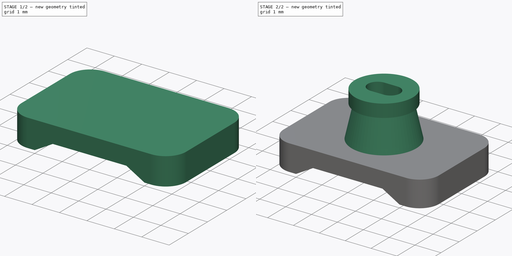
[diagram: build sequence overview — one tinted view per stage of 2, left to right]
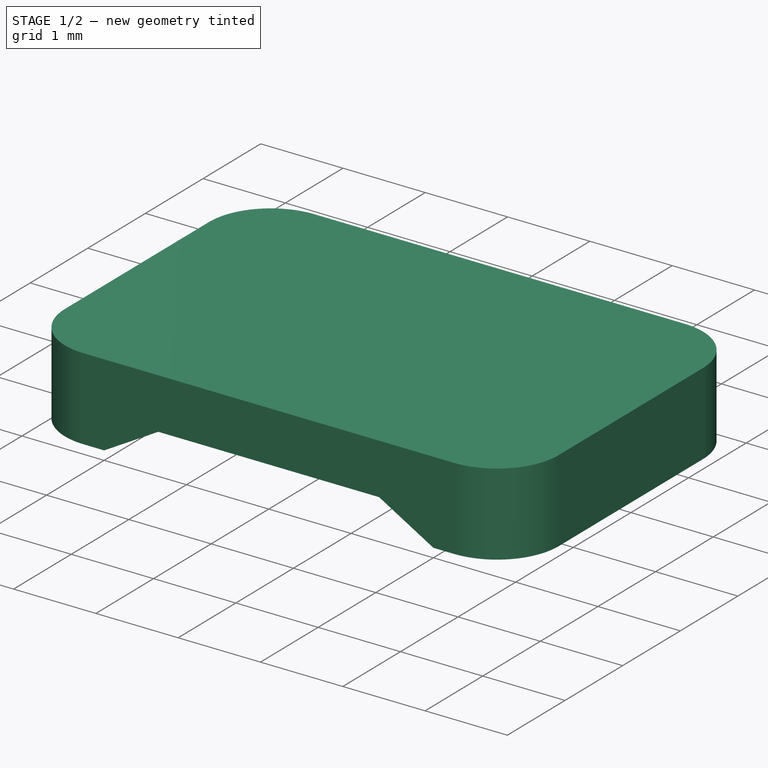
[diagram: stage 1 of 2 — iso view after this stage's code; geometry added in this stage tinted green]
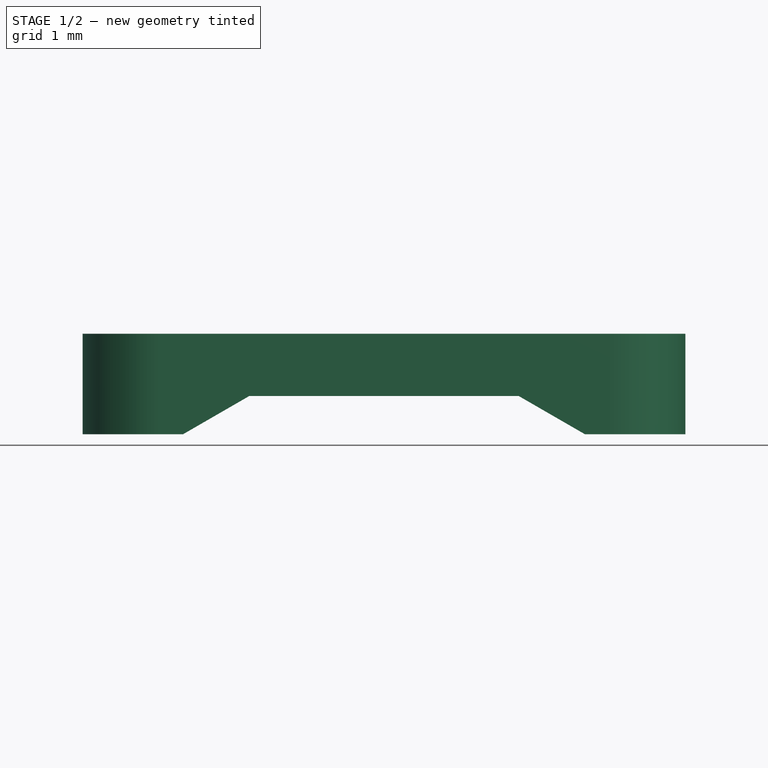
[diagram: stage 1 of 2 — front view after this stage's code; geometry added in this stage tinted green]
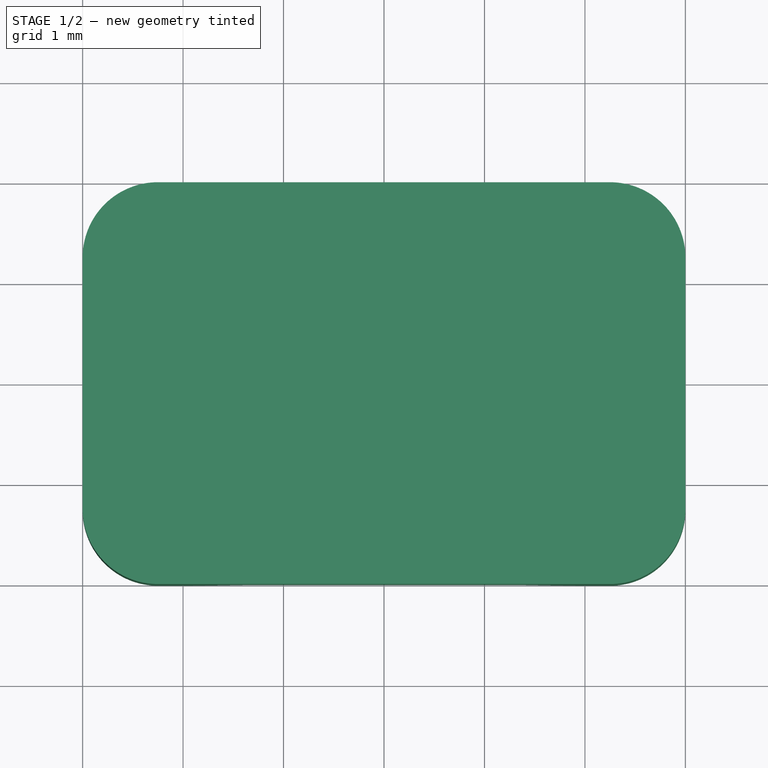
[diagram: stage 1 of 2 — top view after this stage's code; geometry added in this stage tinted green]
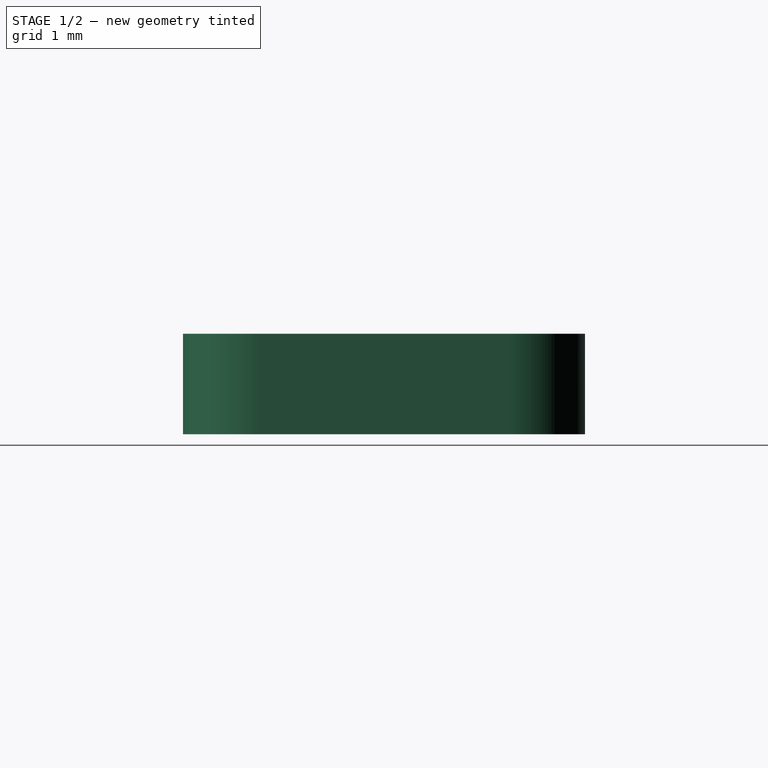
[diagram: stage 1 of 2 — right view after this stage's code; geometry added in this stage tinted green]
FCSTD DOCUMENT  (FreeCAD 1.1R41905 (Git))
Label: 23-T-16-NOZ_MOUNT
License: Creative Commons Attribution-NonCommercial-ShareAlike 4.0
LicenseURL: https://creativecommons.org/licenses/by-nc-sa/4.0/
objects: Sketcher::SketchObject×4, PartDesign::Pocket×2, App::Point×1, PartDesign::Pad×1, PartDesign::Revolution×1, PartDesign::Body×1
note: 21 computed .brp shape members not serialized (recipe doc carries the construction recipe); baked Part::Feature solids carry a one-line shape summary decoded from their .brp

FEATURE [App::Point] Origin001  label="Origine"
  Role = Origin
FEATURE [Sketcher::SketchObject] Sketch
  ArcFitTolerance = 1e-06
  AttachmentSupport = -> [Origin]
  ExternalTypes = [0]
  FullyConstrained = true
  MakeInternals = false
  MapMode = 5
  sketch-geometry (10):
    g0: LineSegment StartX=-3 StartY=1.25 StartZ=0 EndX=-3 EndY=-1.25 EndZ=0
    g1: LineSegment StartX=-2.25 StartY=-2 StartZ=0 EndX=2.25 EndY=-2 EndZ=0
    g2: LineSegment StartX=3 StartY=-1.25 StartZ=0 EndX=3 EndY=1.25 EndZ=0
    g3: LineSegment StartX=2.25 StartY=2 StartZ=0 EndX=-2.25 EndY=2 EndZ=0
    g4: ArcOfCircle CenterX=-2.25 CenterY=1.25 CenterZ=0 NormalX=0 NormalY=0 NormalZ=1 AngleXU=0 Radius=0.75 StartAngle=1.5708 EndAngle=3.14159
    g5: ArcOfCircle CenterX=-2.25 CenterY=-1.25 CenterZ=0 NormalX=0 NormalY=0 NormalZ=1 AngleXU=0 Radius=0.75 StartAngle=3.14159 EndAngle=4.71239
    g6: ArcOfCircle CenterX=2.25 CenterY=-1.25 CenterZ=0 NormalX=0 NormalY=0 NormalZ=1 AngleXU=0 Radius=0.75 StartAngle=4.71239 EndAngle=6.28319
    g7: ArcOfCircle CenterX=2.25 CenterY=1.25 CenterZ=0 NormalX=0 NormalY=0 NormalZ=1 AngleXU=0 Radius=0.75 StartAngle=0 EndAngle=1.5708
    g8: GeomPoint [constr] X=-3 Y=2 Z=0
    g9: GeomPoint [constr] X=3 Y=-2 Z=0
  constraints (23):
    c: Tangent(g0,g4) = -1.5708
    c: Tangent(g0,g5) = -1.5708
    c: Tangent(g1,g5) = -1.5708
    c: Tangent(g1,g6) = -1.5708
    c: Tangent(g2,g6) = -1.5708
    c: Tangent(g2,g7) = -1.5708
    c: Tangent(g3,g7) = -1.5708
    c: Tangent(g3,g4) = -1.5708
    c: Vertical(g0)
    c: Vertical(g2)
    c: Horizontal(g1)
    c: Horizontal(g3)
    c: Equal(g4,g5)
    c: Equal(g5,g6)
    c: Equal(g6,g7)
    c: PointOnObject(g8,g0)
    c: PointOnObject(g8,g3)
    c: PointOnObject(g9,g1)
    c: PointOnObject(g9,g2)
    c: Distance(g0,g2) = 6
    c: Distance(g1,g3) = 4
    c: Radius(g5) = 0.75
    c: Symmetric(g6,g4,g-1)
FEATURE [PartDesign::Pad] Pad
  Direction = (0,0,1)
  Length = 1
  Length2 = 10
  Profile = -> Sketch
  ReferenceAxis = -> Sketch [N_Axis]
  Refine = true
  Suppressed = false
  Type = 0
FEATURE [Sketcher::SketchObject] Sketch001
  ArcFitTolerance = 1e-06
  AttachmentSupport = -> [Pad]
  ExternalTypes = [0]
  FullyConstrained = true
  MakeInternals = false
  MapMode = 5
  Placement = pos=(0,-2,0) rot=(1,0,0;1.5708rad)
  sketch-geometry (4):
    g0: LineSegment StartX=-2 StartY=0 StartZ=0 EndX=-1.34182 EndY=0.38 EndZ=0
    g1: LineSegment StartX=-1.34182 StartY=0.38 StartZ=0 EndX=1.34182 EndY=0.38 EndZ=0
    g2: LineSegment StartX=1.34182 StartY=0.38 StartZ=0 EndX=2 EndY=0 EndZ=0
    g3: LineSegment StartX=2 StartY=0 StartZ=0 EndX=-2 EndY=0 EndZ=0
  constraints (11):
    c: PointOnObject(g0,g-1)
    c: Coincident(g0,g1)
    c: Horizontal(g1)
    c: Coincident(g1,g2)
    c: Coincident(g2,g3)
    c: Coincident(g3,g0)
    c: Angle(g3,g0) = 0.523599
    c: Symmetric(g0,g2,g-2)
    c: Equal(g2,g0)
    c: DistanceX(g3,g3) = 4
    c: Distance(g1,g3) = 0.38
FEATURE [PartDesign::Pocket] Pocket
  BaseFeature = -> Pad
  Direction = (0,1,-2e-16)
  Length = 5
  Length2 = 5
  Midplane = true
  Profile = -> Sketch001
  ReferenceAxis = -> Sketch001 [N_Axis]
  Refine = true
  Suppressed = false
  Type = 1
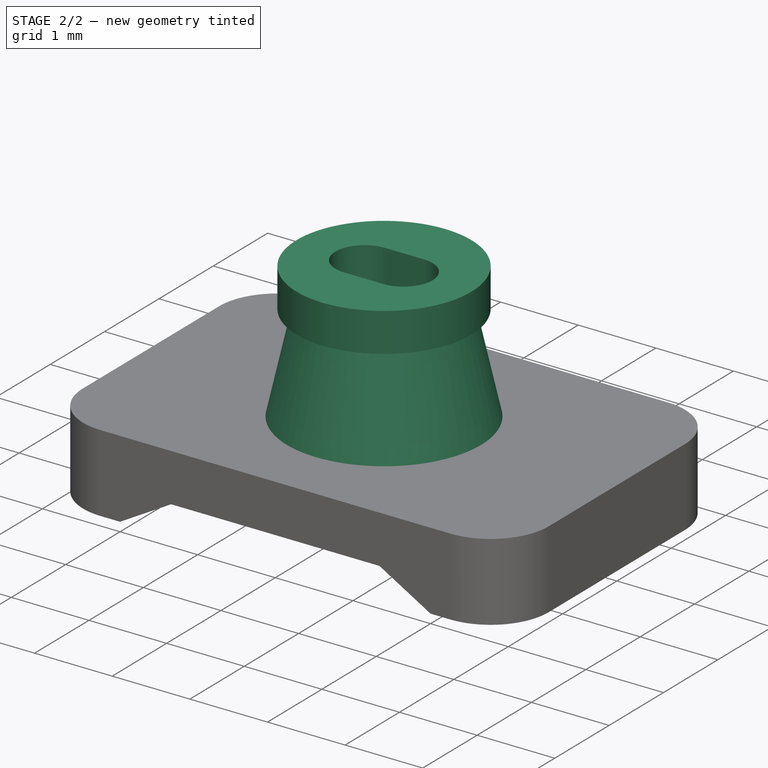
[diagram: stage 2 of 2 — iso view after this stage's code; geometry added in this stage tinted green]
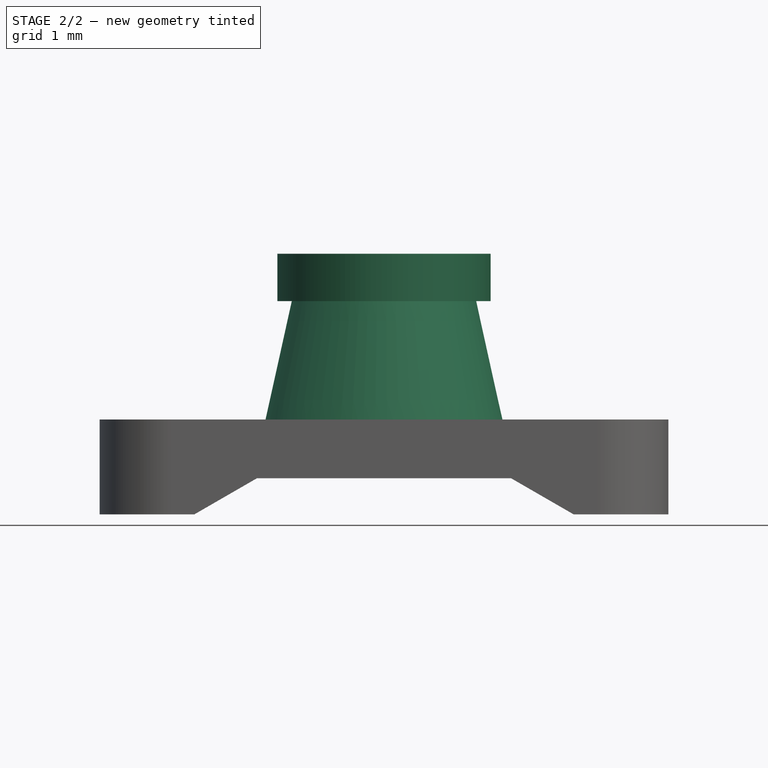
[diagram: stage 2 of 2 — front view after this stage's code; geometry added in this stage tinted green]
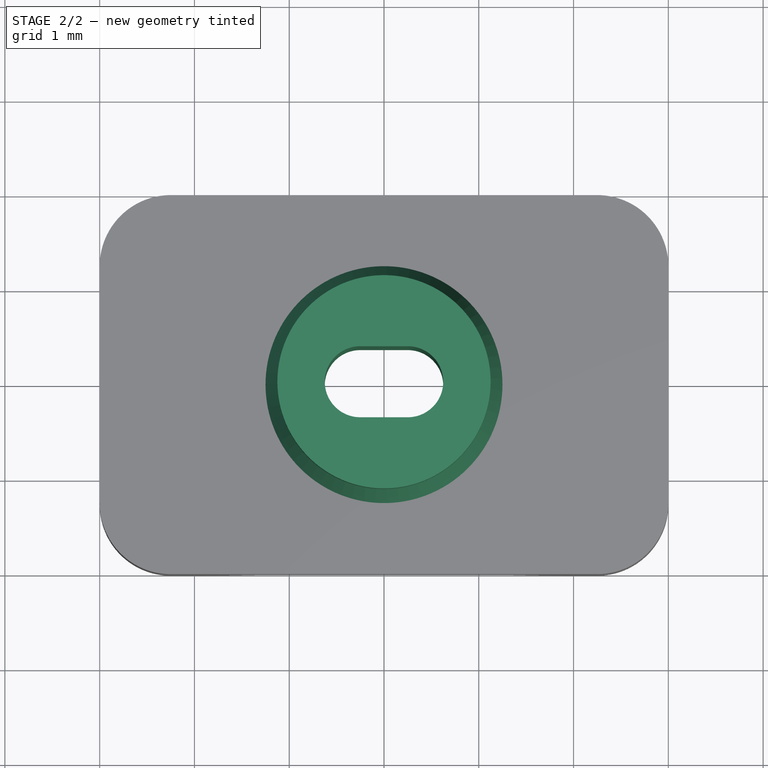
[diagram: stage 2 of 2 — top view after this stage's code; geometry added in this stage tinted green]
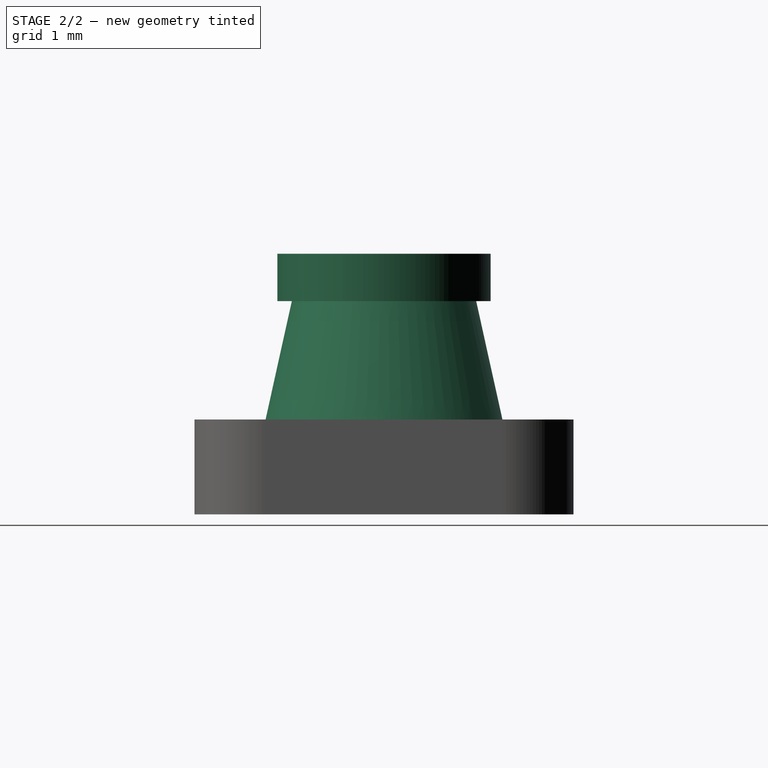
[diagram: stage 2 of 2 — right view after this stage's code; geometry added in this stage tinted green]
FEATURE [Sketcher::SketchObject] Sketch002
  ArcFitTolerance = 1e-06
  AttachmentSupport = -> [Origin]
  ExternalGeometry = -> [Pocket]
  ExternalTypes = [0]
  FullyConstrained = true
  MakeInternals = false
  MapMode = 5
  Placement = pos=(0,0,0) rot=(1,0,0;1.5708rad)
  expr: Constraints[12] = 25 / 2
  expr: Constraints[13] = 2.25 / 2
  sketch-geometry (6):
    g0: LineSegment StartX=0 StartY=1 StartZ=0 EndX=0 EndY=2.75 EndZ=0
    g1: LineSegment StartX=0 StartY=2.75 StartZ=0 EndX=-1.125 EndY=2.75 EndZ=0
    g2: LineSegment StartX=-1.125 StartY=2.75 StartZ=0 EndX=-1.125 EndY=2.25 EndZ=0
    g3: LineSegment StartX=-1.125 StartY=2.25 StartZ=0 EndX=-0.972882 EndY=2.25 EndZ=0
    g4: LineSegment StartX=-0.972882 StartY=2.25 StartZ=0 EndX=-1.25 EndY=1 EndZ=0
    g5: LineSegment StartX=-1.25 StartY=1 StartZ=0 EndX=0 EndY=1 EndZ=0
  constraints (18):
    c: PointOnObject(g0,g-2)
    c: PointOnObject(g0,g-2)
    c: Coincident(g0,g1)
    c: Horizontal(g1)
    c: Coincident(g1,g2)
    c: Vertical(g2)
    c: Coincident(g2,g3)
    c: Coincident(g3,g4)
    c: Coincident(g4,g5)
    c: Coincident(g5,g0)
    c: Horizontal(g5)
    c: Horizontal(g3)
    c: Angle(g4,g0) = 0.218166
    c: DistanceX(g1,g1) = 1.125
    c: Distance(g2,g2) = 0.5
    c: Distance(g1,g-1) = 2.75
    c: PointOnObject(g0,g-3)
    c: Distance(g4,g0) = 1.25
FEATURE [PartDesign::Revolution] Revolution
  Angle = 360
  Angle2 = 60
  Axis = (0,2e-16,1)
  Base = (0,0,0)
  BaseFeature = -> Pocket
  Profile = -> Sketch002
  ReferenceAxis = -> Sketch002 [V_Axis]
  Refine = true
  Suppressed = false
  Type = 0
FEATURE [Sketcher::SketchObject] Sketch003
  ArcFitTolerance = 1e-06
  AttachmentSupport = -> [Revolution]
  ExternalTypes = [0]
  FullyConstrained = true
  MakeInternals = false
  MapMode = 5
  Placement = pos=(0,6e-16,2.75) rot=(0,0,1;0rad)
  expr: Constraints[7] = 0.75 / 2
  sketch-geometry (4):
    g0: ArcOfCircle CenterX=-0.25 CenterY=0 CenterZ=0 NormalX=0 NormalY=0 NormalZ=1 AngleXU=0 Radius=0.375 StartAngle=1.5708 EndAngle=4.71239
    g1: ArcOfCircle CenterX=0.25 CenterY=0 CenterZ=0 NormalX=0 NormalY=0 NormalZ=1 AngleXU=0 Radius=0.375 StartAngle=4.71239 EndAngle=7.85398
    g2: LineSegment StartX=-0.25 StartY=0.375 StartZ=0 EndX=0.25 EndY=0.375 EndZ=0
    g3: LineSegment StartX=-0.25 StartY=-0.375 StartZ=0 EndX=0.25 EndY=-0.375 EndZ=0
  constraints (9):
    c: Tangent(g0,g2) = 1.5708
    c: Tangent(g0,g3) = -1.5708
    c: Tangent(g1,g2) = 1.5708
    c: Tangent(g1,g3) = -1.5708
    c: Equal(g0,g1)
    c: Symmetric(g0,g1,g-2)
    c: Distance(g0,g1) = 0.5
    c: Radius(g1) = 0.375
    c: PointOnObject(g1,g-1)
FEATURE [PartDesign::Pocket] Pocket001
  BaseFeature = -> Revolution
  Direction = (0,0,-1)
  Length = 5
  Length2 = 5
  Profile = -> Sketch003
  ReferenceAxis = -> Sketch003 [N_Axis]
  Refine = true
  Suppressed = false
  Type = 1
FEATURE [PartDesign::Body] Body  label="Corps"
  AllowCompound = false
  Group = -> [Sketch,Pad,Sketch001,Pocket,Sketch002,Revolution,Sketch003,Pocket001]
  Origin = -> Origin
  Tip = -> Pocket001
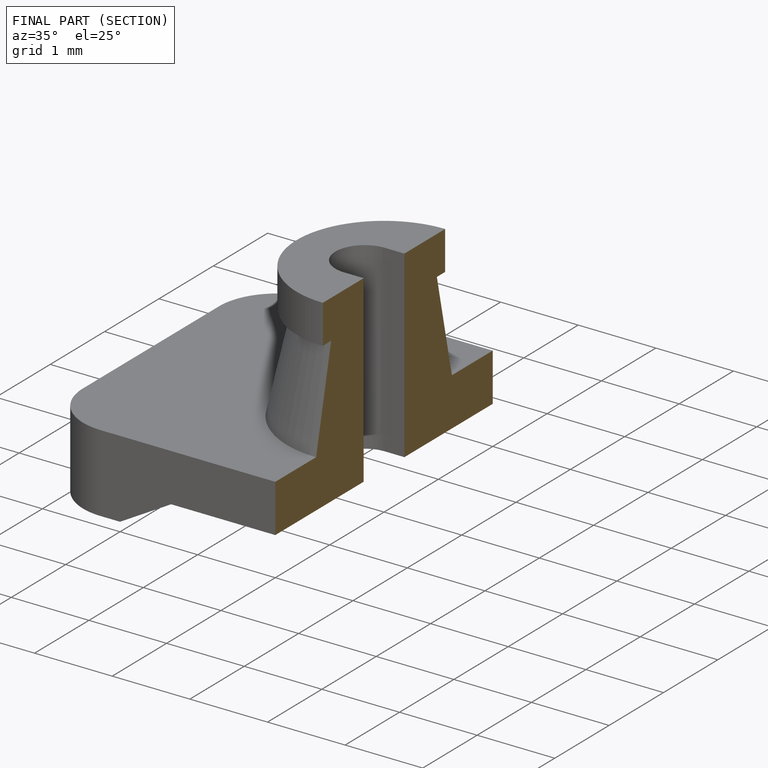
[diagram: finished part — half-section view (interior)]
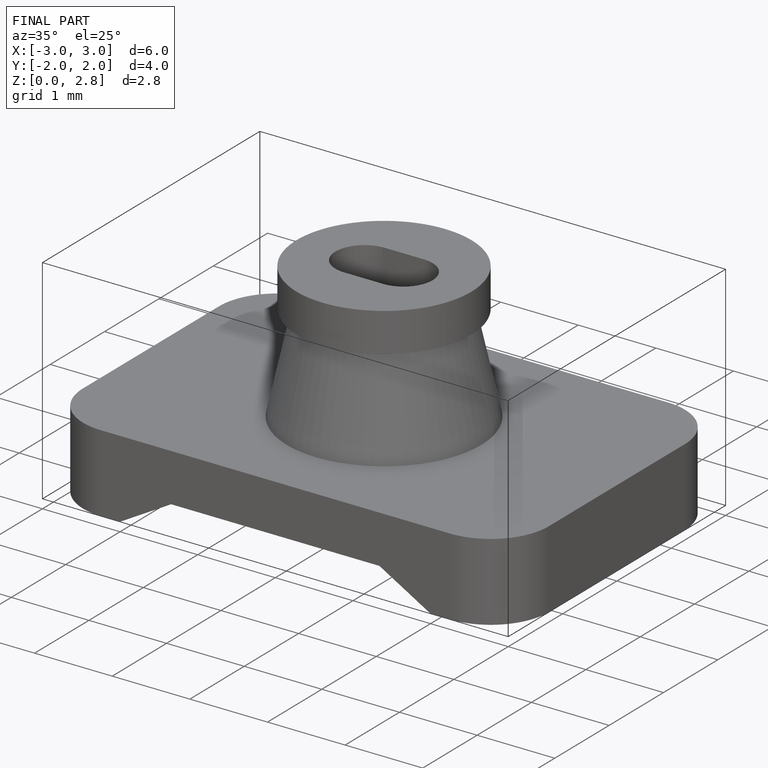
[diagram: finished part — iso view with bounding-box wireframe]
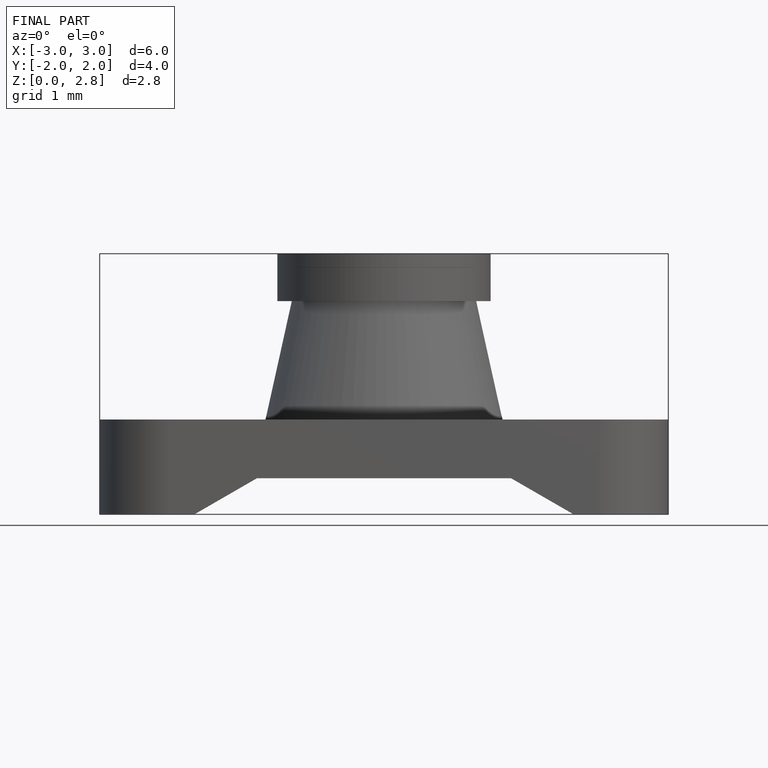
[diagram: finished part — front view with bounding-box wireframe]
